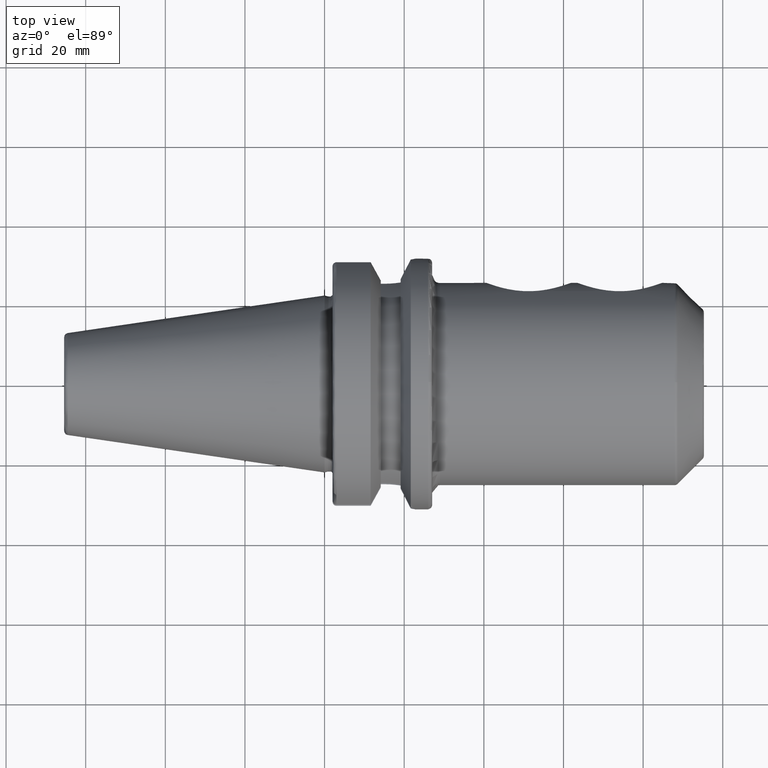
[diagram: clean part render]
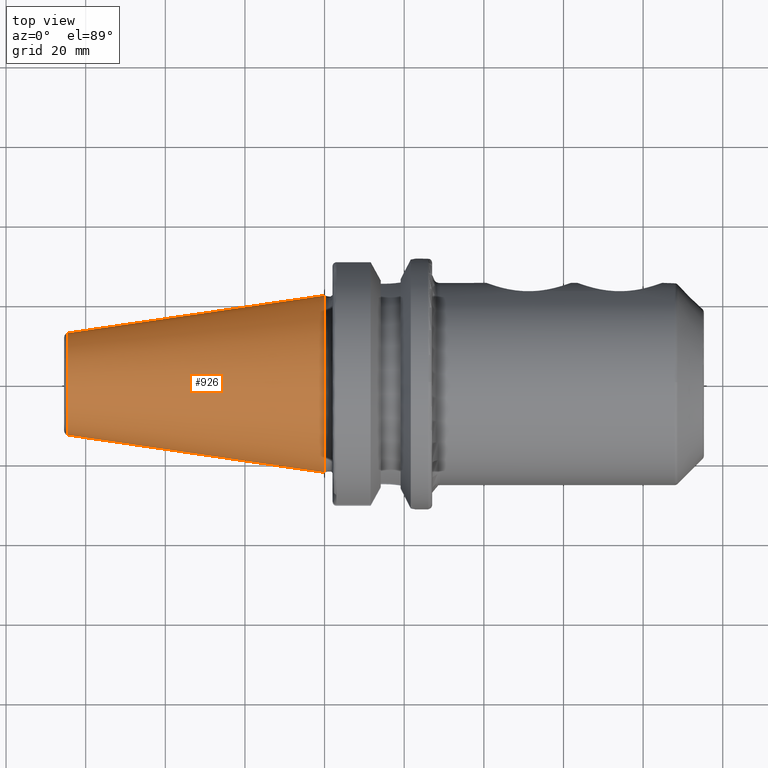
[diagram: same view with one face highlighted and labeled with its STEP entity id]
A machine part, top view. The second image highlights one B-rep face of the part: STEP entity #926.
In plain terms, the highlighted conical surface has half-angle 8.297 deg.
Its self-contained STEP definition (entity closure, byte-faithful):
#26=CONICAL_SURFACE('',#1045,17.5186442890469,0.144812498238939);
#94=LINE('',#2162,#141);
#141=VECTOR('',#1286,17.5186442890469);
#230=FACE_OUTER_BOUND('',#294,.T.);
#294=EDGE_LOOP('',(#798,#799,#800,#801,#802));
#354=CIRCLE('',#1041,12.8122885780937);
#355=CIRCLE('',#1042,12.8122885780937);
#358=CIRCLE('',#1046,22.225);
#454=VERTEX_POINT('',#2152);
#455=VERTEX_POINT('',#2153);
#457=VERTEX_POINT('',#2160);
#575=EDGE_CURVE('',#454,#455,#354,.T.);
#576=EDGE_CURVE('',#455,#454,#355,.T.);
#579=EDGE_CURVE('',#457,#457,#358,.T.);
#580=EDGE_CURVE('',#457,#454,#94,.T.);
#798=ORIENTED_EDGE('',*,*,#579,.F.);
#799=ORIENTED_EDGE('',*,*,#580,.T.);
#800=ORIENTED_EDGE('',*,*,#575,.T.);
#801=ORIENTED_EDGE('',*,*,#576,.T.);
#802=ORIENTED_EDGE('',*,*,#580,.F.);
#926=ADVANCED_FACE('',(#230),#26,.T.);
#1041=AXIS2_PLACEMENT_3D('',#2154,#1274,#1275);
#1042=AXIS2_PLACEMENT_3D('',#2155,#1276,#1277);
#1045=AXIS2_PLACEMENT_3D('',#2159,#1282,#1283);
#1046=AXIS2_PLACEMENT_3D('',#2161,#1284,#1285);
#1274=DIRECTION('center_axis',(1.,0.,0.));
#1275=DIRECTION('ref_axis',(0.,0.,-1.));
#1276=DIRECTION('center_axis',(1.,0.,0.));
#1277=DIRECTION('ref_axis',(0.,0.,-1.));
#1282=DIRECTION('center_axis',(1.,0.,0.));
#1283=DIRECTION('ref_axis',(0.,1.,0.));
#1284=DIRECTION('center_axis',(1.,0.,0.));
#1285=DIRECTION('ref_axis',(0.,0.,-1.));
#1286=DIRECTION('',(-0.989532981063282,0.144306893071729,1.76724974695192E-17));
#2152=CARTESIAN_POINT('',(-64.5443068930717,-12.8122885780937,-1.56905281969147E-15));
#2153=CARTESIAN_POINT('',(-64.5443068930717,-1.56905281969147E-15,12.8122885780937));
#2154=CARTESIAN_POINT('Origin',(-64.5443068930717,0.,0.));
#2155=CARTESIAN_POINT('Origin',(-64.5443068930717,0.,0.));
#2159=CARTESIAN_POINT('Origin',(-32.2721534465359,0.,0.));
#2160=CARTESIAN_POINT('',(4.44089209850063E-15,-22.225,-2.72177751110499E-15));
#2161=CARTESIAN_POINT('Origin',(0.,0.,0.));
#2162=CARTESIAN_POINT('',(-32.2721534465359,-17.5186442890469,-2.14541516539823E-15));